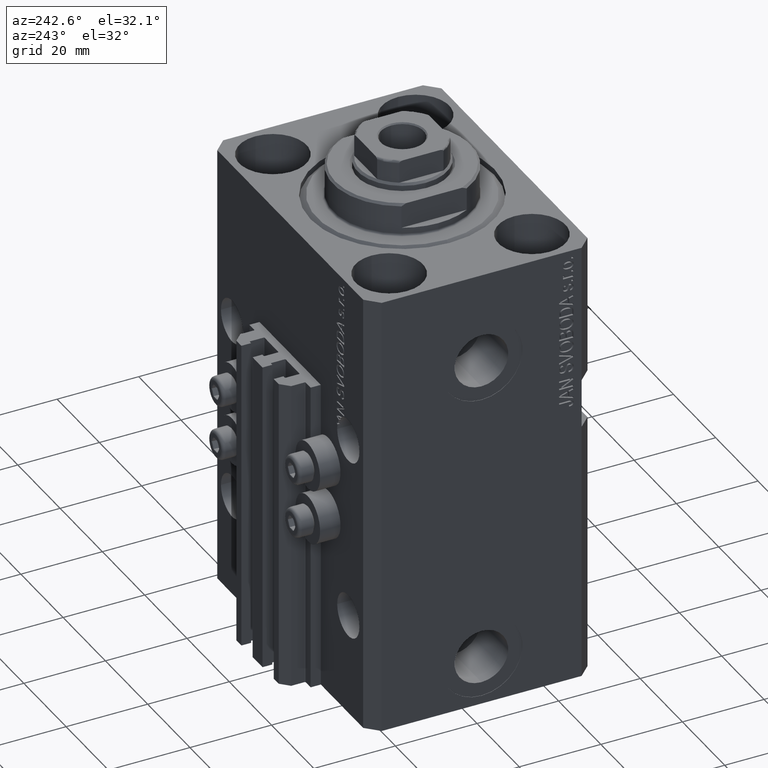
[diagram: clean part render]
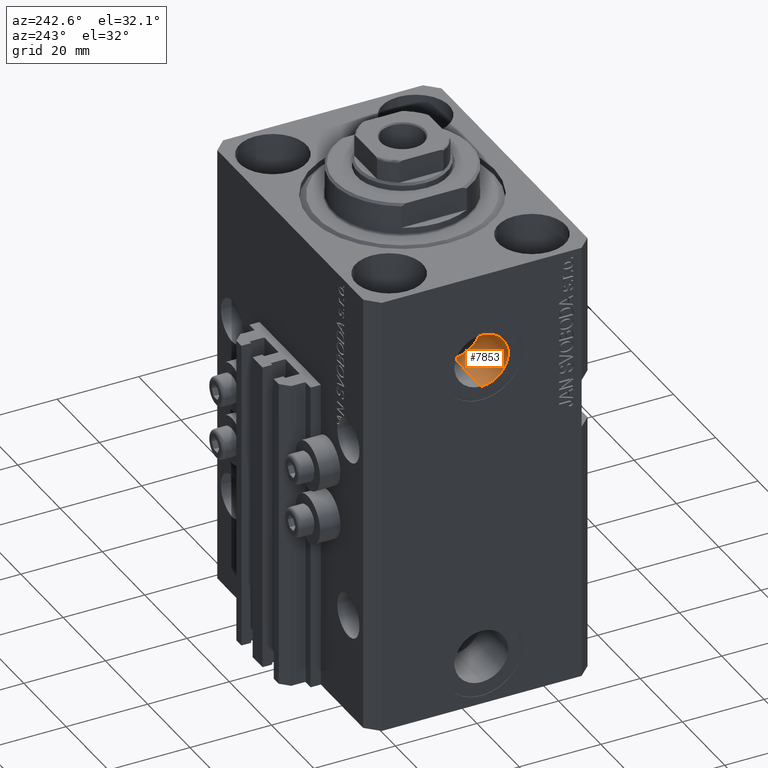
[diagram: same view with one face highlighted and labeled with its STEP entity id]
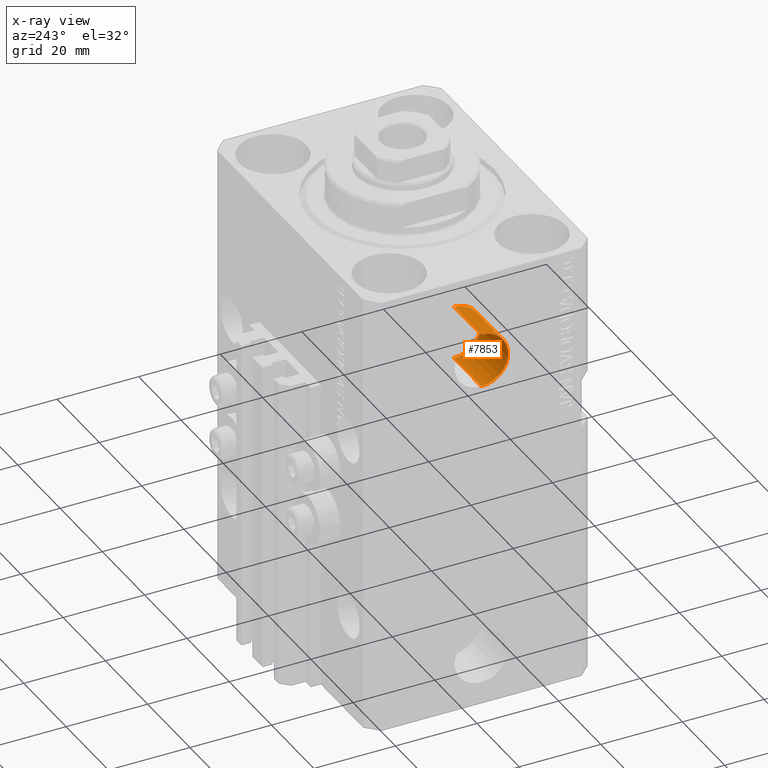
[diagram: x-ray of the same camera — body ghosted, the highlighted face saturated]
A machine part, auxiliary view. The second image highlights one B-rep face of the part: STEP entity #7853.
The next image is the same camera in x-ray: the body ghosted, the highlighted face saturated — about 0% of this face is hidden behind the body in this view.
In plain terms, the highlighted cylindrical surface (edge-blend (fillet) strip) has radius 6.58 mm, axis along (-1, -0, -0).
Its self-contained STEP definition (entity closure, byte-faithful):
#185 = CARTESIAN_POINT ( 'NONE',  ( -24.39999999999999147, 0.000000000000000000, -15.41999999999999993 ) ) ;
#409 = DIRECTION ( 'NONE',  ( 0.000000000000000000, 0.000000000000000000, 1.000000000000000000 ) ) ;
#1927 = DIRECTION ( 'NONE',  ( -1.000000000000000000, 0.000000000000000000, 0.000000000000000000 ) ) ;
#2525 = VECTOR ( 'NONE', #7584, 1000.000000000000000 ) ;
#3176 = CARTESIAN_POINT ( 'NONE',  ( -37.39999999999999147, 0.000000000000000000, -15.41999999999999993 ) ) ;
#3767 = DIRECTION ( 'NONE',  ( -1.000000000000000000, -0.000000000000000000, -0.000000000000000000 ) ) ;
#3993 = CARTESIAN_POINT ( 'NONE',  ( -24.39999999999999147, 0.000000000000000000, -22.00000000000000000 ) ) ;
#4474 = LINE ( 'NONE', #36795, #2525 ) ;
#5437 = CARTESIAN_POINT ( 'NONE',  ( -24.39999999999999147, 0.000000000000000000, -15.41999999999999993 ) ) ;
#5576 = AXIS2_PLACEMENT_3D ( 'NONE', #5668, #6387, #42286 ) ;
#5668 = CARTESIAN_POINT ( 'NONE',  ( -37.39999999999999147, 0.000000000000000000, -22.00000000000000000 ) ) ;
#6387 = DIRECTION ( 'NONE',  ( -1.000000000000000000, 0.000000000000000000, 0.000000000000000000 ) ) ;
#7114 = FACE_OUTER_BOUND ( 'NONE', #43490, .T. ) ;
#7584 = DIRECTION ( 'NONE',  ( -1.000000000000000000, -0.000000000000000000, -0.000000000000000000 ) ) ;
#7828 = EDGE_CURVE ( 'NONE', #13909, #27375, #4474, .T. ) ;
#7853 = ADVANCED_FACE ( 'NONE', ( #7114 ), #36566, .F. ) ;
#8646 = CARTESIAN_POINT ( 'NONE',  ( -24.39999999999999147, 0.000000000000000000, -22.00000000000000000 ) ) ;
#11185 = AXIS2_PLACEMENT_3D ( 'NONE', #8646, #1927, #16561 ) ;
#13909 = VERTEX_POINT ( 'NONE', #42546 ) ;
#16561 = DIRECTION ( 'NONE',  ( 0.000000000000000000, 0.000000000000000000, 1.000000000000000000 ) ) ;
#18491 = VERTEX_POINT ( 'NONE', #185 ) ;
#18574 = AXIS2_PLACEMENT_3D ( 'NONE', #3993, #3767, #409 ) ;
#20048 = DIRECTION ( 'NONE',  ( -1.000000000000000000, -0.000000000000000000, -0.000000000000000000 ) ) ;
#25973 = ORIENTED_EDGE ( 'NONE', *, *, #7828, .T. ) ;
#26229 = CIRCLE ( 'NONE', #5576, 6.579999999999999183 ) ;
#26484 = ORIENTED_EDGE ( 'NONE', *, *, #46072, .F. ) ;
#27375 = VERTEX_POINT ( 'NONE', #31014 ) ;
#28526 = VECTOR ( 'NONE', #20048, 1000.000000000000000 ) ;
#31014 = CARTESIAN_POINT ( 'NONE',  ( -37.39999999999999147, 8.058175938389579572E-16, -28.57999999999999829 ) ) ;
#31357 = EDGE_CURVE ( 'NONE', #18491, #46761, #38234, .T. ) ;
#34338 = EDGE_CURVE ( 'NONE', #27375, #46761, #26229, .T. ) ;
#35458 = ORIENTED_EDGE ( 'NONE', *, *, #34338, .T. ) ;
#36566 = CYLINDRICAL_SURFACE ( 'NONE', #18574, 6.579999999999999183 ) ;
#36795 = CARTESIAN_POINT ( 'NONE',  ( -24.39999999999999147, 8.058175938389580558E-16, -28.57999999999999829 ) ) ;
#38234 = LINE ( 'NONE', #5437, #28526 ) ;
#41749 = CIRCLE ( 'NONE', #11185, 6.579999999999999183 ) ;
#42286 = DIRECTION ( 'NONE',  ( 0.000000000000000000, 0.000000000000000000, 1.000000000000000000 ) ) ;
#42546 = CARTESIAN_POINT ( 'NONE',  ( -24.39999999999999147, 8.058175938389579572E-16, -28.57999999999999829 ) ) ;
#42647 = ORIENTED_EDGE ( 'NONE', *, *, #31357, .F. ) ;
#43490 = EDGE_LOOP ( 'NONE', ( #26484, #25973, #35458, #42647 ) ) ;
#46072 = EDGE_CURVE ( 'NONE', #13909, #18491, #41749, .T. ) ;
#46761 = VERTEX_POINT ( 'NONE', #3176 ) ;